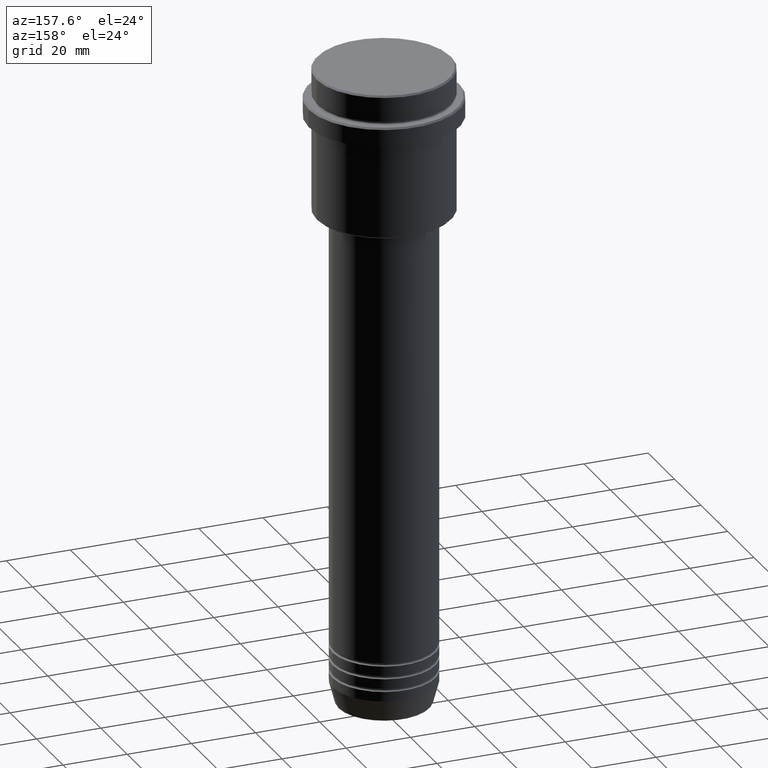
[diagram: clean part render]
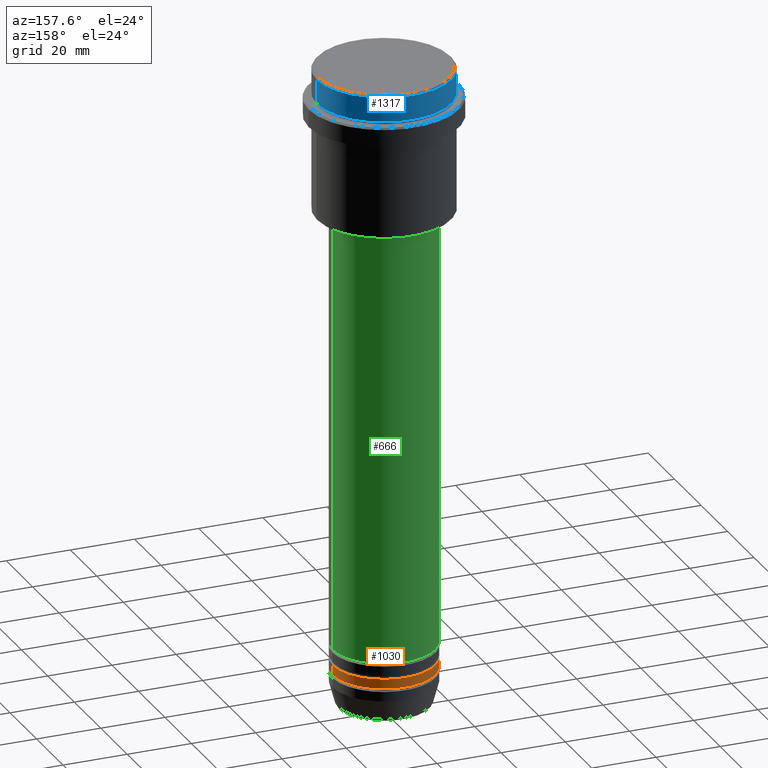
[diagram: same view with three faces highlighted in distinct colors, each labeled with its STEP entity id]
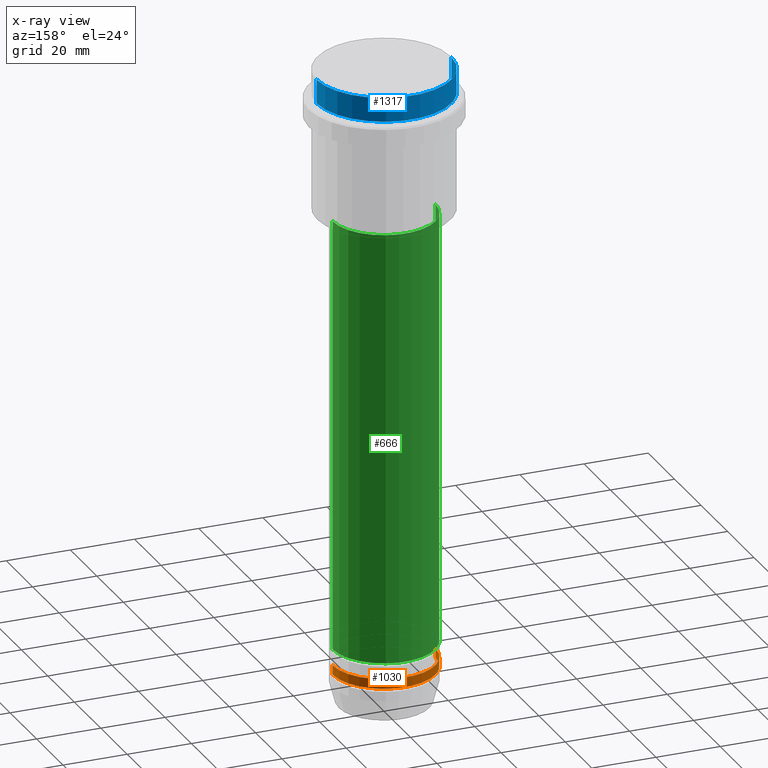
[diagram: x-ray of the same camera — body ghosted, the three highlighted faces saturated]
A machine part, auxiliary view with three faces highlighted in distinct colors.
The next image is the same camera in x-ray (body ghosted, the three faces saturated) — at least one of them is partly hidden behind the body in this view.
Their STEP definitions:

[orange] entity #1030 — the highlighted cylindrical surface (partial cylindrical patch) has radius 16 mm, axis along (-0, -0, 1).
#115 = DIRECTION ( 'NONE',  ( 1.000000000000000000, 0.000000000000000000, 0.000000000000000000 ) ) ;
#118 = CARTESIAN_POINT ( 'NONE',  ( 0.000000000000000000, 0.000000000000000000, -188.9999999999998863 ) ) ;
#137 = VERTEX_POINT ( 'NONE', #147 ) ;
#140 = DIRECTION ( 'NONE',  ( 1.000000000000000000, 0.000000000000000000, 0.000000000000000000 ) ) ;
#147 = CARTESIAN_POINT ( 'NONE',  ( -16.00000000000000000, 1.959434878635765131E-15, -185.9999999999998863 ) ) ;
#158 = VERTEX_POINT ( 'NONE', #285 ) ;
#165 = CARTESIAN_POINT ( 'NONE',  ( 16.00000000000000000, 0.000000000000000000, -185.9999999999998863 ) ) ;
#176 = ORIENTED_EDGE ( 'NONE', *, *, #1277, .F. ) ;
#199 = CARTESIAN_POINT ( 'NONE',  ( -16.00000000000000000, 1.959434878635765131E-15, 0.000000000000000000 ) ) ;
#200 = VECTOR ( 'NONE', #726, 1000.000000000000000 ) ;
#203 = CARTESIAN_POINT ( 'NONE',  ( 16.00000000000000000, 0.000000000000000000, 0.000000000000000000 ) ) ;
#219 = CARTESIAN_POINT ( 'NONE',  ( 16.00000000000000000, 0.000000000000000000, -188.9999999999998863 ) ) ;
#243 = CIRCLE ( 'NONE', #1313, 16.00000000000000000 ) ;
#285 = CARTESIAN_POINT ( 'NONE',  ( -16.00000000000000000, 1.959434878635765131E-15, -188.9999999999998863 ) ) ;
#290 = LINE ( 'NONE', #203, #200 ) ;
#292 = CYLINDRICAL_SURFACE ( 'NONE', #1262, 16.00000000000000000 ) ;
#348 = AXIS2_PLACEMENT_3D ( 'NONE', #118, #1190, #140 ) ;
#402 = VERTEX_POINT ( 'NONE', #219 ) ;
#480 = DIRECTION ( 'NONE',  ( -0.000000000000000000, -0.000000000000000000, 1.000000000000000000 ) ) ;
#511 = FACE_OUTER_BOUND ( 'NONE', #1303, .T. ) ;
#603 = EDGE_CURVE ( 'NONE', #158, #137, #932, .T. ) ;
#633 = DIRECTION ( 'NONE',  ( -0.000000000000000000, -0.000000000000000000, 1.000000000000000000 ) ) ;
#668 = VERTEX_POINT ( 'NONE', #165 ) ;
#680 = VECTOR ( 'NONE', #633, 1000.000000000000000 ) ;
#726 = DIRECTION ( 'NONE',  ( -0.000000000000000000, -0.000000000000000000, 1.000000000000000000 ) ) ;
#735 = ORIENTED_EDGE ( 'NONE', *, *, #861, .T. ) ;
#751 = ORIENTED_EDGE ( 'NONE', *, *, #1409, .F. ) ;
#759 = DIRECTION ( 'NONE',  ( -0.000000000000000000, -0.000000000000000000, 1.000000000000000000 ) ) ;
#861 = EDGE_CURVE ( 'NONE', #402, #158, #1286, .T. ) ;
#932 = LINE ( 'NONE', #199, #680 ) ;
#1030 = ADVANCED_FACE ( 'NONE', ( #511 ), #292, .T. ) ;
#1088 = CARTESIAN_POINT ( 'NONE',  ( 0.000000000000000000, 0.000000000000000000, -185.9999999999998863 ) ) ;
#1190 = DIRECTION ( 'NONE',  ( -0.000000000000000000, -0.000000000000000000, 1.000000000000000000 ) ) ;
#1239 = ORIENTED_EDGE ( 'NONE', *, *, #603, .T. ) ;
#1248 = DIRECTION ( 'NONE',  ( 1.000000000000000000, 0.000000000000000000, 0.000000000000000000 ) ) ;
#1262 = AXIS2_PLACEMENT_3D ( 'NONE', #1372, #480, #1248 ) ;
#1277 = EDGE_CURVE ( 'NONE', #402, #668, #290, .T. ) ;
#1286 = CIRCLE ( 'NONE', #348, 16.00000000000000000 ) ;
#1303 = EDGE_LOOP ( 'NONE', ( #735, #1239, #751, #176 ) ) ;
#1313 = AXIS2_PLACEMENT_3D ( 'NONE', #1088, #759, #115 ) ;
#1372 = CARTESIAN_POINT ( 'NONE',  ( 0.000000000000000000, 0.000000000000000000, 0.000000000000000000 ) ) ;
#1409 = EDGE_CURVE ( 'NONE', #668, #137, #243, .T. ) ;

[blue] entity #1317 — the highlighted cylindrical surface (partial cylindrical patch) has radius 21 mm, axis along (-0, -0, 1).
#1 = DIRECTION ( 'NONE',  ( 1.000000000000000000, 0.000000000000000000, 0.000000000000000000 ) ) ;
#27 = EDGE_CURVE ( 'NONE', #1281, #703, #371, .T. ) ;
#107 = CARTESIAN_POINT ( 'NONE',  ( 0.000000000000000000, 0.000000000000000000, -0.5000000000000108802 ) ) ;
#121 = EDGE_CURVE ( 'NONE', #1281, #989, #1105, .T. ) ;
#157 = CARTESIAN_POINT ( 'NONE',  ( 0.000000000000000000, 0.000000000000000000, -7.999999999999998224 ) ) ;
#197 = CIRCLE ( 'NONE', #1210, 21.00000000000000000 ) ;
#207 = DIRECTION ( 'NONE',  ( -0.000000000000000000, -0.000000000000000000, 1.000000000000000000 ) ) ;
#277 = CARTESIAN_POINT ( 'NONE',  ( -21.00000000000000000, 2.571758278209441661E-15, -0.5000000000000108802 ) ) ;
#296 = CYLINDRICAL_SURFACE ( 'NONE', #1264, 21.00000000000000000 ) ;
#366 = DIRECTION ( 'NONE',  ( 1.000000000000000000, 0.000000000000000000, 0.000000000000000000 ) ) ;
#371 = CIRCLE ( 'NONE', #484, 21.00000000000000000 ) ;
#427 = DIRECTION ( 'NONE',  ( 0.000000000000000000, 0.000000000000000000, -1.000000000000000000 ) ) ;
#484 = AXIS2_PLACEMENT_3D ( 'NONE', #157, #901, #366 ) ;
#507 = LINE ( 'NONE', #1271, #1385 ) ;
#519 = EDGE_CURVE ( 'NONE', #703, #548, #507, .T. ) ;
#548 = VERTEX_POINT ( 'NONE', #277 ) ;
#658 = EDGE_CURVE ( 'NONE', #548, #989, #197, .T. ) ;
#662 = ORIENTED_EDGE ( 'NONE', *, *, #658, .T. ) ;
#676 = ORIENTED_EDGE ( 'NONE', *, *, #121, .F. ) ;
#703 = VERTEX_POINT ( 'NONE', #717 ) ;
#717 = CARTESIAN_POINT ( 'NONE',  ( -21.00000000000000000, 2.571758278209441661E-15, -7.999999999999998224 ) ) ;
#734 = DIRECTION ( 'NONE',  ( 1.000000000000000000, 0.000000000000000000, 0.000000000000000000 ) ) ;
#740 = CARTESIAN_POINT ( 'NONE',  ( 21.00000000000000000, 0.000000000000000000, -7.999999999999998224 ) ) ;
#773 = CARTESIAN_POINT ( 'NONE',  ( 21.00000000000000000, 0.000000000000000000, 0.000000000000000000 ) ) ;
#781 = EDGE_LOOP ( 'NONE', ( #1251, #1089, #662, #676 ) ) ;
#826 = FACE_OUTER_BOUND ( 'NONE', #781, .T. ) ;
#855 = CARTESIAN_POINT ( 'NONE',  ( 21.00000000000000000, 0.000000000000000000, -0.5000000000000108802 ) ) ;
#901 = DIRECTION ( 'NONE',  ( -0.000000000000000000, -0.000000000000000000, 1.000000000000000000 ) ) ;
#927 = CARTESIAN_POINT ( 'NONE',  ( 0.000000000000000000, 0.000000000000000000, 0.000000000000000000 ) ) ;
#989 = VERTEX_POINT ( 'NONE', #855 ) ;
#1050 = DIRECTION ( 'NONE',  ( -0.000000000000000000, -0.000000000000000000, 1.000000000000000000 ) ) ;
#1089 = ORIENTED_EDGE ( 'NONE', *, *, #519, .T. ) ;
#1105 = LINE ( 'NONE', #773, #1207 ) ;
#1207 = VECTOR ( 'NONE', #1345, 1000.000000000000000 ) ;
#1210 = AXIS2_PLACEMENT_3D ( 'NONE', #107, #427, #1 ) ;
#1251 = ORIENTED_EDGE ( 'NONE', *, *, #27, .T. ) ;
#1264 = AXIS2_PLACEMENT_3D ( 'NONE', #927, #1050, #734 ) ;
#1271 = CARTESIAN_POINT ( 'NONE',  ( -21.00000000000000000, 2.571758278209441661E-15, 0.000000000000000000 ) ) ;
#1281 = VERTEX_POINT ( 'NONE', #740 ) ;
#1317 = ADVANCED_FACE ( 'NONE', ( #826 ), #296, .T. ) ;
#1345 = DIRECTION ( 'NONE',  ( -0.000000000000000000, -0.000000000000000000, 1.000000000000000000 ) ) ;
#1385 = VECTOR ( 'NONE', #207, 1000.000000000000000 ) ;

[green] entity #666 — the highlighted cylindrical surface (partial cylindrical patch) has radius 16 mm, axis along (-0, -0, 1).
#17 = EDGE_CURVE ( 'NONE', #313, #854, #1094, .T. ) ;
#26 = CYLINDRICAL_SURFACE ( 'NONE', #220, 16.00000000000000000 ) ;
#55 = VECTOR ( 'NONE', #1204, 1000.000000000000000 ) ;
#74 = EDGE_CURVE ( 'NONE', #237, #313, #1097, .T. ) ;
#123 = EDGE_CURVE ( 'NONE', #237, #1159, #549, .T. ) ;
#143 = CARTESIAN_POINT ( 'NONE',  ( 16.00000000000000355, 0.000000000000000000, -46.00000000000001421 ) ) ;
#168 = ORIENTED_EDGE ( 'NONE', *, *, #503, .F. ) ;
#185 = CARTESIAN_POINT ( 'NONE',  ( 0.000000000000000000, 0.000000000000000000, -46.00000000000001421 ) ) ;
#192 = DIRECTION ( 'NONE',  ( 1.000000000000000000, 0.000000000000000000, 0.000000000000000000 ) ) ;
#210 = EDGE_LOOP ( 'NONE', ( #672, #744, #168, #999 ) ) ;
#220 = AXIS2_PLACEMENT_3D ( 'NONE', #1132, #888, #1140 ) ;
#237 = VERTEX_POINT ( 'NONE', #1213 ) ;
#300 = DIRECTION ( 'NONE',  ( -0.000000000000000000, -0.000000000000000000, 1.000000000000000000 ) ) ;
#313 = VERTEX_POINT ( 'NONE', #1396 ) ;
#322 = AXIS2_PLACEMENT_3D ( 'NONE', #1389, #401, #192 ) ;
#401 = DIRECTION ( 'NONE',  ( -0.000000000000000000, -0.000000000000000000, 1.000000000000000000 ) ) ;
#411 = DIRECTION ( 'NONE',  ( 1.000000000000000000, 0.000000000000000000, 0.000000000000000000 ) ) ;
#503 = EDGE_CURVE ( 'NONE', #1159, #854, #1099, .T. ) ;
#549 = LINE ( 'NONE', #1229, #55 ) ;
#666 = ADVANCED_FACE ( 'NONE', ( #1316 ), #26, .T. ) ;
#672 = ORIENTED_EDGE ( 'NONE', *, *, #74, .T. ) ;
#744 = ORIENTED_EDGE ( 'NONE', *, *, #17, .T. ) ;
#854 = VERTEX_POINT ( 'NONE', #1053 ) ;
#888 = DIRECTION ( 'NONE',  ( -0.000000000000000000, -0.000000000000000000, 1.000000000000000000 ) ) ;
#976 = VECTOR ( 'NONE', #981, 1000.000000000000000 ) ;
#981 = DIRECTION ( 'NONE',  ( -0.000000000000000000, -0.000000000000000000, 1.000000000000000000 ) ) ;
#999 = ORIENTED_EDGE ( 'NONE', *, *, #123, .F. ) ;
#1010 = AXIS2_PLACEMENT_3D ( 'NONE', #185, #300, #411 ) ;
#1053 = CARTESIAN_POINT ( 'NONE',  ( -16.00000000000000355, 1.959434878635765526E-15, -46.00000000000001421 ) ) ;
#1094 = LINE ( 'NONE', #1305, #976 ) ;
#1097 = CIRCLE ( 'NONE', #322, 16.00000000000000000 ) ;
#1099 = CIRCLE ( 'NONE', #1010, 16.00000000000000355 ) ;
#1132 = CARTESIAN_POINT ( 'NONE',  ( 0.000000000000000000, 0.000000000000000000, 0.000000000000000000 ) ) ;
#1140 = DIRECTION ( 'NONE',  ( 1.000000000000000000, 0.000000000000000000, 0.000000000000000000 ) ) ;
#1159 = VERTEX_POINT ( 'NONE', #143 ) ;
#1204 = DIRECTION ( 'NONE',  ( -0.000000000000000000, -0.000000000000000000, 1.000000000000000000 ) ) ;
#1213 = CARTESIAN_POINT ( 'NONE',  ( 16.00000000000000000, 0.000000000000000000, -180.9999999999998863 ) ) ;
#1229 = CARTESIAN_POINT ( 'NONE',  ( 16.00000000000000000, 0.000000000000000000, 0.000000000000000000 ) ) ;
#1305 = CARTESIAN_POINT ( 'NONE',  ( -16.00000000000000000, 1.959434878635765131E-15, 0.000000000000000000 ) ) ;
#1316 = FACE_OUTER_BOUND ( 'NONE', #210, .T. ) ;
#1389 = CARTESIAN_POINT ( 'NONE',  ( 0.000000000000000000, 0.000000000000000000, -180.9999999999998863 ) ) ;
#1396 = CARTESIAN_POINT ( 'NONE',  ( -16.00000000000000000, 1.959434878635765131E-15, -180.9999999999998863 ) ) ;